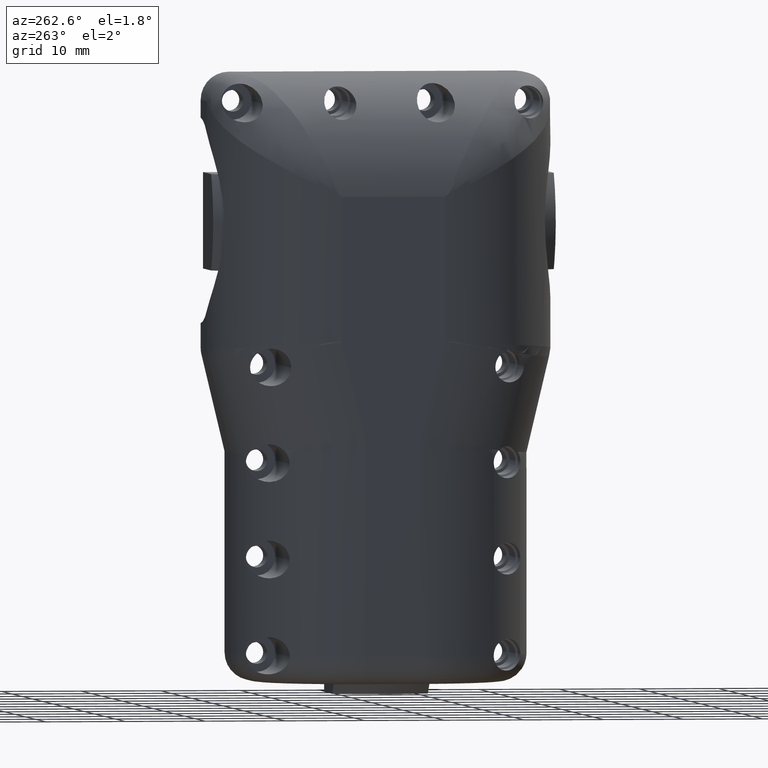
[diagram: clean part render]
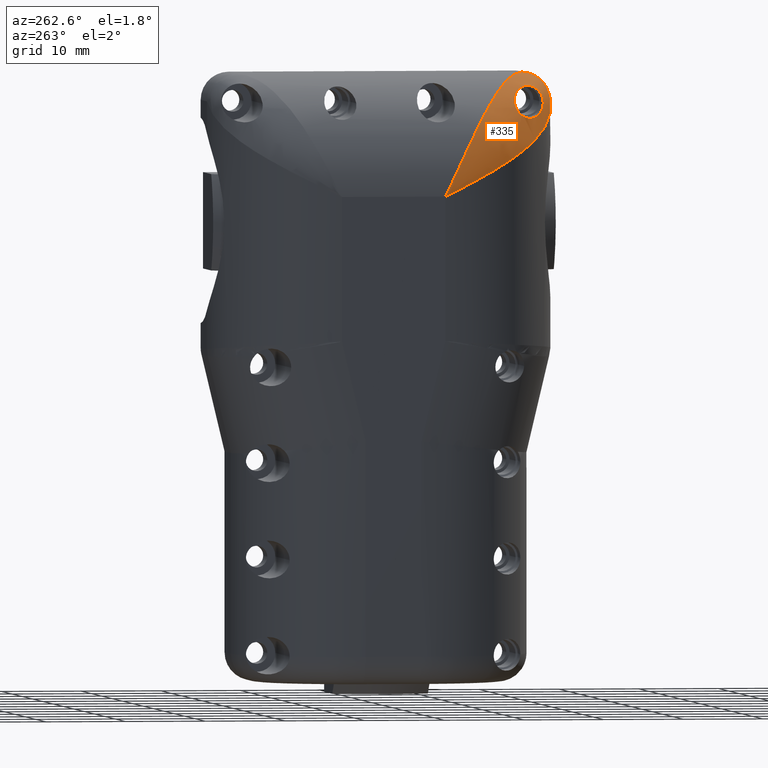
[diagram: same view with one face highlighted and labeled with its STEP entity id]
A machine part, auxiliary view. The second image highlights one B-rep face of the part: STEP entity #335.
In plain terms, the highlighted face is a freeform B-spline surface patch.
Its self-contained STEP definition (entity closure, byte-faithful):
#172=B_SPLINE_SURFACE_WITH_KNOTS('',3,3,((#9906,#9907,#9908,#9909,#9910,
#9911,#9912,#9913,#9914,#9915,#9916),(#9917,#9918,#9919,#9920,#9921,#9922,
#9923,#9924,#9925,#9926,#9927),(#9928,#9929,#9930,#9931,#9932,#9933,#9934,
#9935,#9936,#9937,#9938),(#9939,#9940,#9941,#9942,#9943,#9944,#9945,#9946,
#9947,#9948,#9949),(#9950,#9951,#9952,#9953,#9954,#9955,#9956,#9957,#9958,
#9959,#9960),(#9961,#9962,#9963,#9964,#9965,#9966,#9967,#9968,#9969,#9970,
#9971),(#9972,#9973,#9974,#9975,#9976,#9977,#9978,#9979,#9980,#9981,#9982),
(#9983,#9984,#9985,#9986,#9987,#9988,#9989,#9990,#9991,#9992,#9993),(#9994,
#9995,#9996,#9997,#9998,#9999,#10000,#10001,#10002,#10003,#10004),(#10005,
#10006,#10007,#10008,#10009,#10010,#10011,#10012,#10013,#10014,#10015),(#10016,
#10017,#10018,#10019,#10020,#10021,#10022,#10023,#10024,#10025,#10026)),
 .UNSPECIFIED.,.F.,.F.,.F.,(4,1,1,1,1,1,1,1,4),(4,1,1,1,1,1,1,1,4),(0.,0.121442877870538,
0.22437898685804,0.35811779447401,0.499999679711168,0.641881627915475,0.775620607198443,
0.878556903394721,1.),(0.,0.148210234424295,0.251522936928657,0.375617345058185,
0.500268534800634,0.625314175968966,0.750378595704012,0.854522249628565,
1.),.UNSPECIFIED.);
#286=FACE_BOUND('',#855,.F.);
#335=ADVANCED_FACE('',(#286,#587),#172,.T.);
#587=FACE_OUTER_BOUND('',#856,.F.);
#855=EDGE_LOOP('',(#1383,#1384));
#856=EDGE_LOOP('',(#1385,#1386,#1387,#1388,#1389));
#1383=ORIENTED_EDGE('',*,*,#4567,.F.);
#1384=ORIENTED_EDGE('',*,*,#4566,.F.);
#1385=ORIENTED_EDGE('',*,*,#4737,.T.);
#1386=ORIENTED_EDGE('',*,*,#4743,.T.);
#1387=ORIENTED_EDGE('',*,*,#4738,.F.);
#1388=ORIENTED_EDGE('',*,*,#4739,.F.);
#1389=ORIENTED_EDGE('',*,*,#4740,.T.);
#4566=EDGE_CURVE('',#5516,#5515,#5175,.T.);
#4567=EDGE_CURVE('',#5515,#5516,#5176,.T.);
#4737=EDGE_CURVE('',#5389,#5424,#5215,.T.);
#4738=EDGE_CURVE('',#5388,#5425,#5216,.T.);
#4739=EDGE_CURVE('',#5410,#5388,#5217,.T.);
#4740=EDGE_CURVE('',#5410,#5389,#5218,.T.);
#4743=EDGE_CURVE('',#5424,#5425,#5221,.T.);
#5175=B_SPLINE_CURVE_WITH_KNOTS('',3,(#8633,#8634,#8635,#8636,#8637,#8638,
#8639,#8640,#8641,#8642,#8643,#8644,#8645,#8646,#8647,#8648,#8649,#8650,
#8651,#8652,#8653,#8654,#8655,#8656,#8657),.UNSPECIFIED.,.F.,.F.,(4,1,1,
1,1,1,1,1,1,1,1,1,1,1,1,1,1,1,1,1,1,1,4),(0.,0.0506793541902437,0.0908323472367964,
0.142352998387935,0.197687520071354,0.255568333218261,0.314468172220642,
0.372998720088854,0.430043284431799,0.484749296559306,0.536441911219367,
0.584515662968158,0.62856256068475,0.668581077888393,0.705135395044744,0.739219493232564,
0.771972484752689,0.804517349539687,0.837976178447728,0.873486978989826,
0.912126348600626,0.946685481310089,1.),.UNSPECIFIED.);
#5176=B_SPLINE_CURVE_WITH_KNOTS('',3,(#8658,#8659,#8660,#8661,#8662,#8663,
#8664,#8665,#8666,#8667,#8668,#8669,#8670,#8671,#8672,#8673,#8674,#8675,
#8676,#8677),.UNSPECIFIED.,.F.,.F.,(4,1,1,1,1,1,1,1,1,1,1,1,1,1,1,1,1,4),
(0.,0.0825102405343772,0.145507518864289,0.223512219786494,0.302992916788969,
0.381001038442481,0.454343938201605,0.520665015478439,0.579422139010471,
0.631875568708462,0.679969891868841,0.725332671960487,0.769090883950003,
0.81230397545964,0.856072639977218,0.901460859472273,0.940782683056626,1.),
 .UNSPECIFIED.);
#5215=B_SPLINE_CURVE_WITH_KNOTS('',3,(#9415,#9416,#9417,#9418,#9419,#9420,
#9421,#9422,#9423,#9424,#9425),.UNSPECIFIED.,.F.,.F.,(4,1,1,1,1,1,1,1,4),
(0.,0.146229347609037,0.250463326751687,0.375390908074875,0.5001903564927,
0.625003806248354,0.749894752676615,0.854052827805868,1.),.UNSPECIFIED.);
#5216=B_SPLINE_CURVE_WITH_KNOTS('',3,(#9426,#9427,#9428,#9429,#9430,#9431,
#9432),.UNSPECIFIED.,.F.,.F.,(4,1,1,1,4),(0.,0.291360756904516,0.499624389596924,
0.707979310529182,1.),.UNSPECIFIED.);
#5217=B_SPLINE_CURVE_WITH_KNOTS('',3,(#9433,#9434,#9435,#9436,#9437,#9438,
#9439,#9440,#9441),.UNSPECIFIED.,.F.,.F.,(4,1,1,1,1,1,4),(0.,0.192336453138635,
0.331729280911528,0.499175965823735,0.666349603512393,0.805481750618049,
1.),.UNSPECIFIED.);
#5218=B_SPLINE_CURVE_WITH_KNOTS('',3,(#9442,#9443,#9444,#9445,#9446,#9447),
 .UNSPECIFIED.,.F.,.F.,(4,1,1,4),(0.,0.384815500815143,0.608082421974545,
1.),.UNSPECIFIED.);
#5221=B_SPLINE_CURVE_WITH_KNOTS('',3,(#9470,#9471,#9472,#9473,#9474,#9475,
#9476,#9477,#9478),.UNSPECIFIED.,.F.,.F.,(4,1,1,1,1,1,4),(0.,0.206930402998787,
0.342322334198443,0.500000139806525,0.657677902920976,0.793069747979455,
1.),.UNSPECIFIED.);
#5388=VERTEX_POINT('',#7736);
#5389=VERTEX_POINT('',#7737);
#5410=VERTEX_POINT('',#7758);
#5424=VERTEX_POINT('',#7772);
#5425=VERTEX_POINT('',#7773);
#5515=VERTEX_POINT('',#7863);
#5516=VERTEX_POINT('',#7864);
#7736=CARTESIAN_POINT('',(-14.9999707476845,-18.499956223127,67.5888474769632));
#7737=CARTESIAN_POINT('',(-19.735670991848,-9.52736027099408,66.8273808612191));
#7758=CARTESIAN_POINT('',(-21.,-6.50000000000004,60.8));
#7772=CARTESIAN_POINT('',(-6.00000000000001,-18.,75.8));
#7773=CARTESIAN_POINT('',(-6.00000000000001,-21.5,72.3));
#7863=CARTESIAN_POINT('',(-14.6678015205774,-15.9999989282473,72.2999922028432));
#7864=CARTESIAN_POINT('',(-11.4474590011632,-19.9998704893571,72.2999654759349));
#8633=CARTESIAN_POINT('',(-11.4474811348144,-19.9999027238793,72.2999478240999));
#8634=CARTESIAN_POINT('',(-11.5088145970293,-20.0002514598458,72.1768551531766));
#8635=CARTESIAN_POINT('',(-11.6384531721217,-19.9796687660702,71.9671775323485));
#8636=CARTESIAN_POINT('',(-11.8760836025799,-19.9055872233438,71.670658365509));
#8637=CARTESIAN_POINT('',(-12.1475353691795,-19.7946206185931,71.3991225459459));
#8638=CARTESIAN_POINT('',(-12.4731537000938,-19.6361875882381,71.1362238856483));
#8639=CARTESIAN_POINT('',(-12.825729930282,-19.4398689893654,70.9006617770292));
#8640=CARTESIAN_POINT('',(-13.1912826976678,-19.2115003512022,70.6989978048862));
#8641=CARTESIAN_POINT('',(-13.5565163026174,-18.9580116733681,70.5359392960605));
#8642=CARTESIAN_POINT('',(-13.9104330503181,-18.6870059036909,70.4138392328806));
#8643=CARTESIAN_POINT('',(-14.2443915597009,-18.4059101881941,70.3345435241969));
#8644=CARTESIAN_POINT('',(-14.5508763028582,-18.1221060522658,70.2969309314584));
#8645=CARTESIAN_POINT('',(-14.8227577135435,-17.8416606904379,70.2998348412189));
#8646=CARTESIAN_POINT('',(-15.0525136263877,-17.5684267732109,70.3406206033506));
#8647=CARTESIAN_POINT('',(-15.2321148031379,-17.3045149188874,70.4181619287074));
#8648=CARTESIAN_POINT('',(-15.3597282995792,-17.0550783013431,70.5303203644031));
#8649=CARTESIAN_POINT('',(-15.4361587935924,-16.8246341525669,70.674362068336));
#8650=CARTESIAN_POINT('',(-15.4648436639587,-16.6172269080257,70.8467977012849));
#8651=CARTESIAN_POINT('',(-15.452015031301,-16.4350688569966,71.0449953918397));
#8652=CARTESIAN_POINT('',(-15.3938175685696,-16.2801407359823,71.2673275909829));
#8653=CARTESIAN_POINT('',(-15.2854880321431,-16.1557144929889,71.5102565870316));
#8654=CARTESIAN_POINT('',(-15.1359320909919,-16.0714067052412,71.7516213261891));
#8655=CARTESIAN_POINT('',(-14.9297996729976,-16.0128579815329,72.0207223262672));
#8656=CARTESIAN_POINT('',(-14.7686114756428,-16.0000708689739,72.1965047952613));
#8657=CARTESIAN_POINT('',(-14.6678069004943,-15.9999990470315,72.29998717122));
#8658=CARTESIAN_POINT('',(-14.6677993438534,-15.9999990446208,72.2999949192861));
#8659=CARTESIAN_POINT('',(-14.5182784112868,-15.9999312610745,72.4531347974863));
#8660=CARTESIAN_POINT('',(-14.242661782883,-16.030575281812,72.7104627183976));
#8661=CARTESIAN_POINT('',(-13.8037371158064,-16.1441637822866,73.0733691983394));
#8662=CARTESIAN_POINT('',(-13.363187260461,-16.3134528277131,73.3982393928237));
#8663=CARTESIAN_POINT('',(-12.8917208128329,-16.5569143925923,73.7032273467224));
#8664=CARTESIAN_POINT('',(-12.4379552571963,-16.8567314303753,73.9569472449796));
#8665=CARTESIAN_POINT('',(-12.0310040262377,-17.2016080161234,74.1479319818919));
#8666=CARTESIAN_POINT('',(-11.6967094799067,-17.5779457755079,74.26807730269));
#8667=CARTESIAN_POINT('',(-11.4498605379136,-17.9687698458433,74.312289198772));
#8668=CARTESIAN_POINT('',(-11.2885934474209,-18.3513280696971,74.2806610795254));
#8669=CARTESIAN_POINT('',(-11.1791979490633,-18.7025086764833,74.1835227516614));
#8670=CARTESIAN_POINT('',(-11.09967033474,-19.0171961394264,74.033355358402));
#8671=CARTESIAN_POINT('',(-11.0532627407182,-19.2963686164513,73.835420355298));
#8672=CARTESIAN_POINT('',(-11.0528729032647,-19.5378819371457,73.5936759352457));
#8673=CARTESIAN_POINT('',(-11.1009218171835,-19.7350552893142,73.3140550014712));
#8674=CARTESIAN_POINT('',(-11.1746055710025,-19.8753400655231,73.0191940843627));
#8675=CARTESIAN_POINT('',(-11.2812111187937,-19.976300151011,72.6740921784339));
#8676=CARTESIAN_POINT('',(-11.3777980210564,-19.9998061692819,72.4368979089809));
#8677=CARTESIAN_POINT('',(-11.4474764238507,-19.9999027089942,72.2999571620307));
#9415=CARTESIAN_POINT('',(-19.735670991848,-9.52736027099408,66.8273808612191));
#9416=CARTESIAN_POINT('',(-19.3956057048242,-9.94022388538756,67.6019515555297));
#9417=CARTESIAN_POINT('',(-18.7015088505212,-10.6470764591061,68.8788431656349));
#9418=CARTESIAN_POINT('',(-17.3961841953825,-11.7077034198896,70.6211512013306));
#9419=CARTESIAN_POINT('',(-15.9582077603059,-12.707403661517,72.0873068948743));
#9420=CARTESIAN_POINT('',(-14.229062170212,-13.7653412854484,73.4037024616891));
#9421=CARTESIAN_POINT('',(-12.3285867295928,-14.8231635620102,74.4574050341944));
#9422=CARTESIAN_POINT('',(-10.4082464217262,-15.8226010234955,75.1835460128328));
#9423=CARTESIAN_POINT('',(-8.29042627867918,-16.8821090944775,75.6777519451907));
#9424=CARTESIAN_POINT('',(-6.84429459622575,-17.5879152475218,75.7999805550659));
#9425=CARTESIAN_POINT('',(-6.,-18.,75.8));
#9426=CARTESIAN_POINT('',(-14.9999707476845,-18.499956223127,67.5888474769632));
#9427=CARTESIAN_POINT('',(-14.2501979974984,-19.0624256481582,68.0463221587502));
#9428=CARTESIAN_POINT('',(-12.8745907629633,-19.9055754107188,68.8303271047723));
#9429=CARTESIAN_POINT('',(-10.7607728914888,-20.7717268298086,69.9427950994762));
#9430=CARTESIAN_POINT('',(-8.5481968913855,-21.3485617638636,71.0562935933332));
#9431=CARTESIAN_POINT('',(-6.93942307334151,-21.5000133391454,71.8414865600046));
#9432=CARTESIAN_POINT('',(-6.00000000000001,-21.5,72.3));
#9433=CARTESIAN_POINT('',(-21.,-6.50000000000003,60.7999999999986));
#9434=CARTESIAN_POINT('',(-21.0008669851031,-7.39159909750961,61.2351626254116));
#9435=CARTESIAN_POINT('',(-20.8615730964033,-8.92816405775645,61.9851461739446));
#9436=CARTESIAN_POINT('',(-20.3054214495582,-11.1808618757758,63.1154806776582));
#9437=CARTESIAN_POINT('',(-19.4755708458653,-13.223575844119,64.1881557131481));
#9438=CARTESIAN_POINT('',(-18.3425618972718,-15.1132615394979,65.2604541152712));
#9439=CARTESIAN_POINT('',(-16.8740503409938,-16.9198492748321,66.3943434514534));
#9440=CARTESIAN_POINT('',(-15.7213155972149,-17.9589725653721,67.1487687542113));
#9441=CARTESIAN_POINT('',(-14.9999707476845,-18.499956223127,67.5888474769632));
#9442=CARTESIAN_POINT('',(-21.,-6.50000000000003,60.8));
#9443=CARTESIAN_POINT('',(-21.0010491993916,-6.88836390068898,61.5957076314562));
#9444=CARTESIAN_POINT('',(-20.8987701102667,-7.50152049150208,62.851957864494));
#9445=CARTESIAN_POINT('',(-20.478581326502,-8.51153997949557,64.8801171186026));
#9446=CARTESIAN_POINT('',(-20.0613538403989,-9.13187185783395,66.0854042643544));
#9447=CARTESIAN_POINT('',(-19.735670991848,-9.52736027099408,66.8273808612191));
#9470=CARTESIAN_POINT('',(-6.00000000000001,-18.0000000000001,75.8));
#9471=CARTESIAN_POINT('',(-6.00000000000001,-18.3791610590434,75.8003846950622));
#9472=CARTESIAN_POINT('',(-6.00000000000002,-19.0045493523858,75.6972252403533));
#9473=CARTESIAN_POINT('',(-6.00000000000001,-19.8434855085185,75.3120056273435));
#9474=CARTESIAN_POINT('',(-6.00000000000001,-20.5002302556289,74.8002292642676));
#9475=CARTESIAN_POINT('',(-6.00000000000001,-21.0120062570342,74.1434844388257));
#9476=CARTESIAN_POINT('',(-6.00000000000001,-21.3972253713299,73.3045486381671));
#9477=CARTESIAN_POINT('',(-6.00000000000001,-21.5003847055541,72.6791607840835));
#9478=CARTESIAN_POINT('',(-6.,-21.5,72.3));
#9906=CARTESIAN_POINT('',(-21.,-6.50000000000003,60.8));
#9907=CARTESIAN_POINT('',(-21.0045073982571,-7.02104097118717,61.8673619909902));
#9908=CARTESIAN_POINT('',(-20.7868439338378,-8.00195026876211,63.8788835669632));
#9909=CARTESIAN_POINT('',(-19.8666464458873,-9.45850230523934,66.7292683130037));
#9910=CARTESIAN_POINT('',(-18.5458458266136,-10.8184164208655,69.1973913467817));
#9911=CARTESIAN_POINT('',(-16.6686233133239,-12.2541923636179,71.4809553178595));
#9912=CARTESIAN_POINT('',(-14.3853802874017,-13.688402010384,73.3528546654019));
#9913=CARTESIAN_POINT('',(-11.9296453833842,-15.0412535913504,74.6670277347577));
#9914=CARTESIAN_POINT('',(-9.10847116005083,-16.4828196028292,75.5741511193527));
#9915=CARTESIAN_POINT('',(-7.14890958749172,-17.4392397731902,75.7998351598961));
#9916=CARTESIAN_POINT('',(-6.00000000000001,-18.0000000000001,75.8));
#9917=CARTESIAN_POINT('',(-21.,-6.50000000000003,60.8));
#9918=CARTESIAN_POINT('',(-21.0020347047069,-7.11280189053216,61.9082550512035));
#9919=CARTESIAN_POINT('',(-20.7725974752978,-8.1206691550524,63.8787224642621));
#9920=CARTESIAN_POINT('',(-19.866646137223,-9.59761128427198,66.7271564139786));
#9921=CARTESIAN_POINT('',(-18.5458451353411,-10.9823659308185,69.1943119329161));
#9922=CARTESIAN_POINT('',(-16.6686219485338,-12.445096737335,71.4771859353168));
#9923=CARTESIAN_POINT('',(-14.3853782944866,-13.9042542905373,73.3488127276852));
#9924=CARTESIAN_POINT('',(-11.9296417499308,-15.2850874384641,74.6631805204754));
#9925=CARTESIAN_POINT('',(-9.12103305753194,-16.7798105880275,75.5843580997632));
#9926=CARTESIAN_POINT('',(-7.15768408715854,-17.7641785118605,75.819138856594));
#9927=CARTESIAN_POINT('',(-6.00000000000001,-18.3176019706566,75.7989049592669));
#9928=CARTESIAN_POINT('',(-21.,-6.50000000000002,60.8));
#9929=CARTESIAN_POINT('',(-21.0009166314665,-7.18091818785217,61.914673991318));
#9930=CARTESIAN_POINT('',(-20.7765387526549,-8.30897917068907,63.8446827140292));
#9931=CARTESIAN_POINT('',(-19.8716675092859,-9.92771493164028,66.62189986718));
#9932=CARTESIAN_POINT('',(-18.5540570042018,-11.3776876248553,69.0447296879486));
#9933=CARTESIAN_POINT('',(-16.6860716281709,-12.9237216206621,71.3002731333171));
#9934=CARTESIAN_POINT('',(-14.4111340572898,-14.4376559452729,73.1662776279937));
#9935=CARTESIAN_POINT('',(-11.9985508528045,-15.9327253898445,74.5333427508847));
#9936=CARTESIAN_POINT('',(-9.21250883846421,-17.4399069499633,75.5360459332665));
#9937=CARTESIAN_POINT('',(-7.21037877751401,-18.2985857976254,75.7964042734919));
#9938=CARTESIAN_POINT('',(-6.,-18.8058482822958,75.7267727743628));
#9939=CARTESIAN_POINT('',(-21.,-6.50000000000003,60.8));
#9940=CARTESIAN_POINT('',(-21.0001707379389,-7.28303195586117,61.8716492809471));
#9941=CARTESIAN_POINT('',(-20.7710880683834,-8.60458982666715,63.7214861539909));
#9942=CARTESIAN_POINT('',(-19.8795739125159,-10.4754235613,66.3875682371789));
#9943=CARTESIAN_POINT('',(-18.570981294556,-12.0678059808056,68.6994419583899));
#9944=CARTESIAN_POINT('',(-16.7216985722816,-13.7685586533431,70.9008573468007));
#9945=CARTESIAN_POINT('',(-14.4641066089498,-15.3723894487855,72.7567630544958));
#9946=CARTESIAN_POINT('',(-12.100968924583,-17.0013699582147,74.2593084919855));
#9947=CARTESIAN_POINT('',(-9.30772876358076,-18.4635520194458,75.3633124278036));
#9948=CARTESIAN_POINT('',(-7.25869411302034,-19.1770978715137,75.6354660505055));
#9949=CARTESIAN_POINT('',(-6.00000000000001,-19.4329047897789,75.5136327792795));
#9950=CARTESIAN_POINT('',(-21.,-6.50000000000003,60.8));
#9951=CARTESIAN_POINT('',(-21.00019481253,-7.36761330464082,61.8175370940436));
#9952=CARTESIAN_POINT('',(-20.7773986930374,-8.84370406341089,63.5717624309577));
#9953=CARTESIAN_POINT('',(-19.8948572045149,-10.9351462229897,66.0867074084901));
#9954=CARTESIAN_POINT('',(-18.6231267632994,-12.8514105946117,68.3376613363515));
#9955=CARTESIAN_POINT('',(-16.8121357942329,-14.7528541013014,70.4970219192701));
#9956=CARTESIAN_POINT('',(-14.5854693530547,-16.4714779942094,72.3509509194537));
#9957=CARTESIAN_POINT('',(-12.2470215407357,-18.1266404672673,73.9452735994048));
#9958=CARTESIAN_POINT('',(-9.39828738783419,-19.3971082786012,75.0497017957409));
#9959=CARTESIAN_POINT('',(-7.28312855791465,-19.8649324334914,75.3000583222759));
#9960=CARTESIAN_POINT('',(-6.00000000000001,-19.9830009745555,75.2090988288077));
#9961=CARTESIAN_POINT('',(-21.,-6.50000000000003,60.8));
#9962=CARTESIAN_POINT('',(-21.0001942059369,-7.44840220920572,61.7484022197008));
#9963=CARTESIAN_POINT('',(-20.7781365825465,-9.07374090518792,63.3737414938285));
#9964=CARTESIAN_POINT('',(-19.8971081266609,-11.3882173091719,65.6882188227565));
#9965=CARTESIAN_POINT('',(-18.6276335876173,-13.4834392920547,67.7834415561317));
#9966=CARTESIAN_POINT('',(-16.8191620789467,-15.5249095854135,69.8249123788301));
#9967=CARTESIAN_POINT('',(-14.5944009916393,-17.3192489550045,71.61925196881));
#9968=CARTESIAN_POINT('',(-12.2609124423755,-18.9629217148263,73.2629231153234));
#9969=CARTESIAN_POINT('',(-9.41118990442588,-20.1515155958898,74.4515159341253));
#9970=CARTESIAN_POINT('',(-7.28971117154474,-20.4976624568899,74.7976624568897));
#9971=CARTESIAN_POINT('',(-6.,-20.48971163799,74.789711278583));
#9972=CARTESIAN_POINT('',(-21.,-6.50000000000003,60.8));
#9973=CARTESIAN_POINT('',(-21.0001948090376,-7.51753707943291,61.6676133088368));
#9974=CARTESIAN_POINT('',(-20.777398735853,-9.27176172212441,63.1437044659201));
#9975=CARTESIAN_POINT('',(-19.8948575282067,-11.7867055675688,65.2351472454067));
#9976=CARTESIAN_POINT('',(-18.6231274882269,-14.0376585900062,67.1514121330077));
#9977=CARTESIAN_POINT('',(-16.8121372254683,-16.1970185329883,69.0528560018819));
#9978=CARTESIAN_POINT('',(-14.5854714429957,-18.0509472648998,70.7714800430819));
#9979=CARTESIAN_POINT('',(-12.2470234459105,-19.6452718978623,72.4266414151889));
#9980=CARTESIAN_POINT('',(-9.39828786363039,-20.7497013783355,73.6971085010922));
#9981=CARTESIAN_POINT('',(-7.28312855791464,-21.0000583222761,74.1649324334912));
#9982=CARTESIAN_POINT('',(-6.00000000000001,-20.9090991044952,74.2830005593573));
#9983=CARTESIAN_POINT('',(-21.,-6.50000000000003,60.8));
#9984=CARTESIAN_POINT('',(-21.0001707322189,-7.57164926512232,61.5830319560902));
#9985=CARTESIAN_POINT('',(-20.7710881385078,-9.42148543683591,62.9045900462578));
#9986=CARTESIAN_POINT('',(-19.8795744426653,-12.0875663539538,64.775424114372));
#9987=CARTESIAN_POINT('',(-18.5709830755085,-14.399437752259,66.3678072376697));
#9988=CARTESIAN_POINT('',(-16.7217020884437,-16.6008521630652,68.0685602084298));
#9989=CARTESIAN_POINT('',(-14.4641117433751,-18.4567574592815,69.6723911234582));
#9990=CARTESIAN_POINT('',(-12.1009751652553,-19.9593050137401,71.3013709860077));
#9991=CARTESIAN_POINT('',(-9.30773071175386,-21.0633113470773,72.7635523118496));
#9992=CARTESIAN_POINT('',(-7.25869411302028,-21.3354660505056,73.4770978715133));
#9993=CARTESIAN_POINT('',(-6.00000000000001,-21.2136329297239,73.7329044619026));
#9994=CARTESIAN_POINT('',(-21.,-6.50000000000003,60.8));
#9995=CARTESIAN_POINT('',(-21.0009166171012,-7.61467395957455,61.4809181806153));
#9996=CARTESIAN_POINT('',(-20.7765388935425,-9.54468157724292,62.6089793082408));
#9997=CARTESIAN_POINT('',(-19.8716683081319,-12.3218975784796,64.2277152168225));
#9998=CARTESIAN_POINT('',(-18.5540591510786,-14.7447256072509,65.6776881514682));
#9999=CARTESIAN_POINT('',(-16.6860758667828,-17.0002681071022,67.2237222738969));
#10000=CARTESIAN_POINT('',(-14.4111402466622,-18.8662722030222,68.7376566459802));
#10001=CARTESIAN_POINT('',(-11.9985602564482,-20.2333385286499,70.2327259201322));
#10002=CARTESIAN_POINT('',(-9.21251275255665,-21.2360441499839,71.7399071526087));
#10003=CARTESIAN_POINT('',(-7.21038602868493,-21.4964037373549,72.5985858411521));
#10004=CARTESIAN_POINT('',(-6.00000000000001,-21.4267727561484,73.1058481436068));
#10005=CARTESIAN_POINT('',(-21.,-6.50000000000003,60.8));
#10006=CARTESIAN_POINT('',(-21.0020346880552,-7.60825501975878,61.4128019431037));
#10007=CARTESIAN_POINT('',(-20.7725975977816,-9.57872159956676,62.4206692637444));
#10008=CARTESIAN_POINT('',(-19.866646754552,-12.4271548525373,63.8976114864044));
#10009=CARTESIAN_POINT('',(-18.5458465178867,-14.8943096140106,65.2823661828651));
#10010=CARTESIAN_POINT('',(-16.6686246781151,-17.1771830795319,66.7450970350981));
#10011=CARTESIAN_POINT('',(-14.3853822803185,-19.0488096456507,68.2042546225112));
#10012=CARTESIAN_POINT('',(-11.9296490168408,-20.3631776407926,69.5850877957212));
#10013=CARTESIAN_POINT('',(-9.1210364603379,-21.284356723175,71.0798108526558));
#10014=CARTESIAN_POINT('',(-7.15769249245437,-21.5191383014903,72.0641787005519));
#10015=CARTESIAN_POINT('',(-6.00000000000001,-21.4989049306205,72.6176023509683));
#10016=CARTESIAN_POINT('',(-21.,-6.50000000000003,60.8));
#10017=CARTESIAN_POINT('',(-21.0045073982571,-7.56736199099021,61.3210409711834));
#10018=CARTESIAN_POINT('',(-20.7868439338378,-9.57888356696328,62.3019502687603));
#10019=CARTESIAN_POINT('',(-19.8666464458873,-12.4292683130038,63.7585023052371));
#10020=CARTESIAN_POINT('',(-18.5458458266136,-14.8973913467817,65.1184164208637));
#10021=CARTESIAN_POINT('',(-16.6686233133239,-17.1809553178595,66.5541923636165));
#10022=CARTESIAN_POINT('',(-14.3853802874017,-19.0528546654019,67.9884020103829));
#10023=CARTESIAN_POINT('',(-11.9296453833842,-20.3670277347578,69.3412535913495));
#10024=CARTESIAN_POINT('',(-9.10847116005085,-21.2741511193527,70.7828196028287));
#10025=CARTESIAN_POINT('',(-7.14890958749177,-21.4998351598962,71.7392397731898));
#10026=CARTESIAN_POINT('',(-6.,-21.5,72.3));